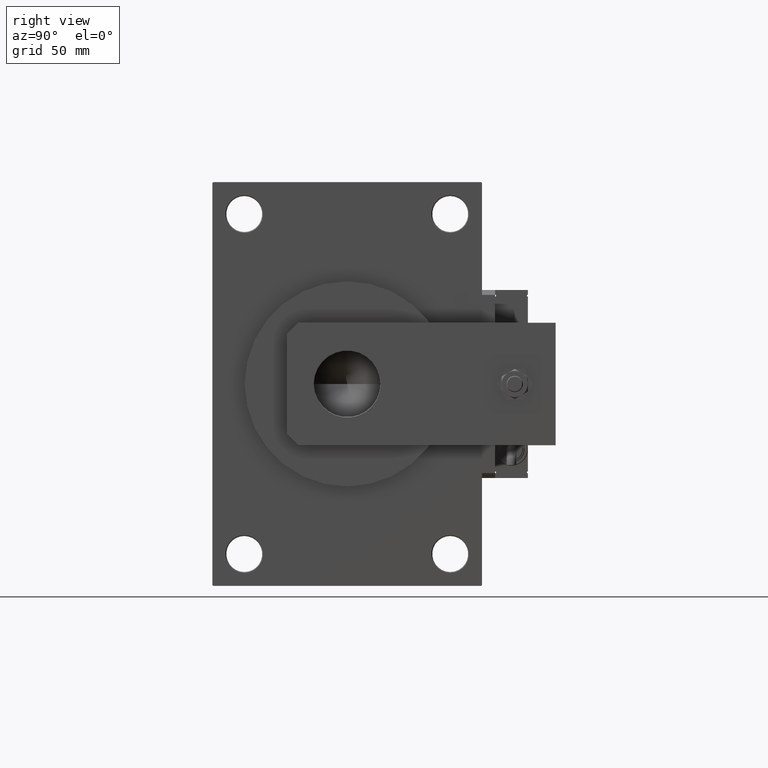
[diagram: clean part render]
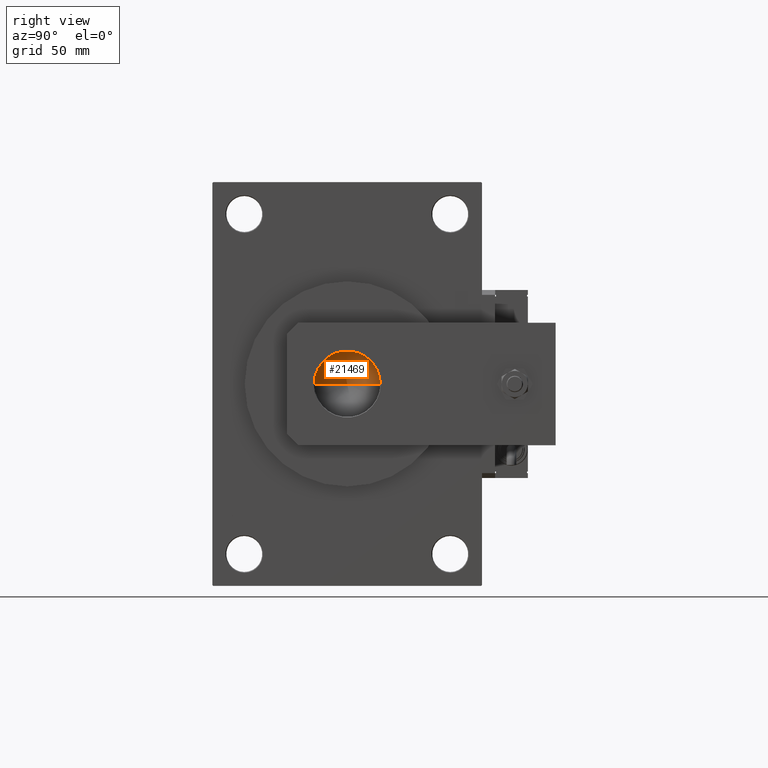
[diagram: same view with one face highlighted and labeled with its STEP entity id]
A machine part, right view. The second image highlights one B-rep face of the part: STEP entity #21469.
In plain terms, the highlighted conical surface has half-angle 59 deg.
Its self-contained STEP definition (entity closure, byte-faithful):
#1942 = ORIENTED_EDGE ( 'NONE', *, *, #30120, .T. ) ;
#2940 = AXIS2_PLACEMENT_3D ( 'NONE', #45258, #45517, #20675 ) ;
#4385 = CARTESIAN_POINT ( 'NONE',  ( -20.24999999999998934, 2.479909768273389117E-15, 136.0000000000000000 ) ) ;
#6295 = LINE ( 'NONE', #47356, #22579 ) ;
#6619 = VECTOR ( 'NONE', #20847, 1000.000000000000000 ) ;
#7917 = ORIENTED_EDGE ( 'NONE', *, *, #32713, .T. ) ;
#8479 = CIRCLE ( 'NONE', #30001, 20.24999999999998934 ) ;
#10330 = DIRECTION ( 'NONE',  ( 0.8571673007021120005, 0.000000000000000000, 0.5150380749100547106 ) ) ;
#12204 = LINE ( 'NONE', #4385, #6619 ) ;
#12299 = FACE_OUTER_BOUND ( 'NONE', #35989, .T. ) ;
#16047 = CARTESIAN_POINT ( 'NONE',  ( -1.844323935812429270E-14, 0.000000000000000000, 123.8325724646919070 ) ) ;
#17725 = EDGE_CURVE ( 'NONE', #19326, #42569, #6295, .T. ) ;
#19326 = VERTEX_POINT ( 'NONE', #16047 ) ;
#20675 = DIRECTION ( 'NONE',  ( 1.000000000000000000, 0.000000000000000000, 0.000000000000000000 ) ) ;
#20847 = DIRECTION ( 'NONE',  ( -0.8571673007021120005, 1.049727191138618326E-16, 0.5150380749100547106 ) ) ;
#21469 = ADVANCED_FACE ( 'NONE', ( #12299 ), #41716, .F. ) ;
#21871 = CARTESIAN_POINT ( 'NONE',  ( 20.24999999999998934, 0.000000000000000000, 136.0000000000000000 ) ) ;
#22579 = VECTOR ( 'NONE', #10330, 1000.000000000000000 ) ;
#30001 = AXIS2_PLACEMENT_3D ( 'NONE', #33304, #48800, #31753 ) ;
#30120 = EDGE_CURVE ( 'NONE', #19326, #32053, #12204, .T. ) ;
#31753 = DIRECTION ( 'NONE',  ( 1.000000000000000000, 0.000000000000000000, 0.000000000000000000 ) ) ;
#32053 = VERTEX_POINT ( 'NONE', #39716 ) ;
#32713 = EDGE_CURVE ( 'NONE', #32053, #42569, #8479, .T. ) ;
#33304 = CARTESIAN_POINT ( 'NONE',  ( 0.000000000000000000, 0.000000000000000000, 136.0000000000000000 ) ) ;
#35989 = EDGE_LOOP ( 'NONE', ( #37511, #1942, #7917 ) ) ;
#37511 = ORIENTED_EDGE ( 'NONE', *, *, #17725, .F. ) ;
#39716 = CARTESIAN_POINT ( 'NONE',  ( -20.24999999999998934, 2.479909768273389117E-15, 136.0000000000000000 ) ) ;
#41716 = CONICAL_SURFACE ( 'NONE', #2940, 20.24999999999998934, 1.029744258676653867 ) ;
#42569 = VERTEX_POINT ( 'NONE', #21871 ) ;
#45258 = CARTESIAN_POINT ( 'NONE',  ( 0.000000000000000000, 0.000000000000000000, 136.0000000000000000 ) ) ;
#45517 = DIRECTION ( 'NONE',  ( -0.000000000000000000, -0.000000000000000000, 1.000000000000000000 ) ) ;
#47356 = CARTESIAN_POINT ( 'NONE',  ( 20.24999999999998934, 0.000000000000000000, 136.0000000000000000 ) ) ;
#48800 = DIRECTION ( 'NONE',  ( -0.000000000000000000, -0.000000000000000000, 1.000000000000000000 ) ) ;